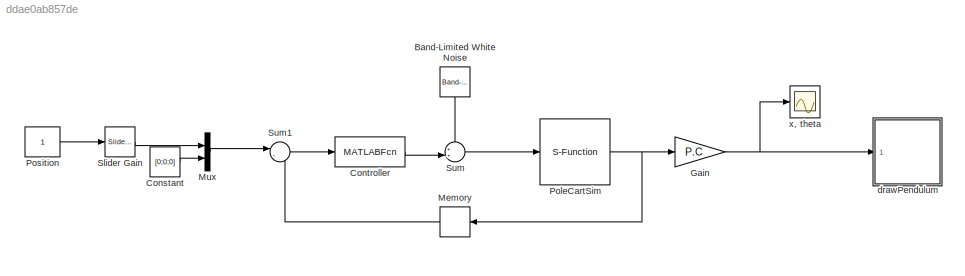
MODEL slx_ddae0ab857de
KIND model
CONFIG AbsTol = auto
CONFIG EnableMultiTasking = on
CONFIG FixedStep = auto
CONFIG MaxStep = auto
CONFIG MinStep = auto
CONFIG RelTol = 1e-3
CONFIG SampleTimeConstraint = Unconstrained
CONFIG Solver = ode45
CONFIG SolverName = ode45
CONFIG StartTime = 0.0
CONFIG StopTime = 1000
BLOCK [Reference] Band-Limited White Noise  REF=simulink/Sources/Band-Limited
White Noise
  Ports = [0, 1]
  SourceBlock = simulink/Sources/Band-Limited\nWhite Noise
  SourceProductBaseCode = SL
  SourceProductName = Simulink
  SourceType = Band-Limited White Noise.
BLOCK [Constant] Constant
  Value = [0;0;0]
BLOCK [MATLABFcn] Controller
  MATLABFcn = controller(u,P)
  OutputDimensions = 1
  Ports = [1, 1]
BLOCK [Gain] Gain
  Gain = P.C
  Multiplication = Matrix(K*u)
  OutDataTypeStr = Inherit: Inherit via internal rule
  ParamDataTypeStr = Inherit: Inherit via internal rule
  SaturateOnIntegerOverflow = off
BLOCK [Memory] Memory
  InitialCondition = P.x0
BLOCK [Mux] Mux
  DisplayOption = bar
  Inputs = 2
  Ports = [2, 1]
BLOCK [S-Function] PoleCartSim
  EnableBusSupport = off
  FunctionName = pendulum
  Parameters = P
  Ports = [1, 1]
  SFcnIsStateOwnerBlock = off
  SFunctionDeploymentMode = off
BLOCK [Constant] Position
BLOCK [Reference] Slider Gain  REF=simulink/Math
Operations/Slider
Gain
  Ports = [1, 1]
  SourceBlock = simulink/Math\nOperations/Slider\nGain
  SourceProductBaseCode = SL
  SourceProductName = Simulink
  SourceType = Slider Gain
BLOCK [Sum] Sum
  IconShape = round
  InputSameDT = off
  Inputs = ++|
  OutDataTypeStr = Inherit: Inherit via internal rule
  Ports = [2, 1]
  SaturateOnIntegerOverflow = off
BLOCK [Sum] Sum1
  IconShape = round
  InputSameDT = off
  Inputs = |-+
  OutDataTypeStr = Inherit: Inherit via internal rule
  Ports = [2, 1]
  SaturateOnIntegerOverflow = off
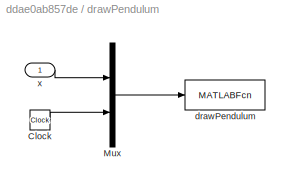
BLOCK [SubSystem] drawPendulum
  Ports = [1]
  RequestExecContextInheritance = off
  Variant = off
BLOCK [Clock] drawPendulum/Clock
BLOCK [Mux] drawPendulum/Mux
  DisplayOption = bar
  Inputs = 2
  Ports = [2, 1]
BLOCK [MATLABFcn] drawPendulum/drawPendulum
  MATLABFcn = drawPendulum(u,L,gap,width,height)
  OutputDimensions = 0
  Ports = [1]
  SampleTime = 0.1
BLOCK [Inport] drawPendulum/x
  IconDisplay = Port number
BLOCK [Scope] x, theta
  NumInputPorts = 1
  Ports = [1]
  ScopeSpecificationString = Simulink.scopes.TimeScopeBlockCfg('CurrentConfiguration', extmgr.ConfigurationSet(extmgr.Configuration('Core','General UI',true),extmgr.Configuration('Core','Source UI',true),extmgr.Configuration('Sources','WiredSimulink',true,'DataLoggingSaveFormat','StructureWithTime','DataLoggingLimitDataPoints',true,'DataLoggingDecimation','1','DataLoggingDecimateData',true),extmgr.Configuration('Visuals','Tim...<+1669ch>
LINE Band-Limited White Noise:1 -> Sum:1
LINE Constant:1 -> Mux:2
LINE Controller:1 -> Sum:2
NET Gain:1 -> drawPendulum:1, x, theta:1
LINE Memory:1 -> Sum1:2
LINE Mux:1 -> Sum1:1
NET PoleCartSim:1 -> Gain:1, Memory:1
LINE Position:1 -> Slider Gain:1
LINE Slider Gain:1 -> Mux:1
LINE Sum1:1 -> Controller:1
LINE Sum:1 -> PoleCartSim:1
LINE drawPendulum/Clock:1 -> drawPendulum/Mux:2
LINE drawPendulum/Mux:1 -> drawPendulum/drawPendulum:1
LINE drawPendulum/x:1 -> drawPendulum/Mux:1
note: NET lines group one-source signal fan-out (src -> all destinations, sorted); 1:1 wires keep LINE
